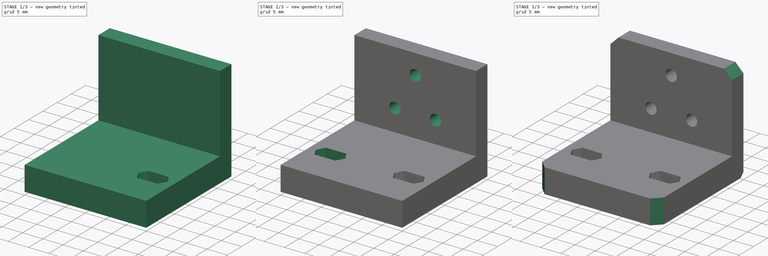
[diagram: build sequence overview — one tinted view per stage of 3, left to right]
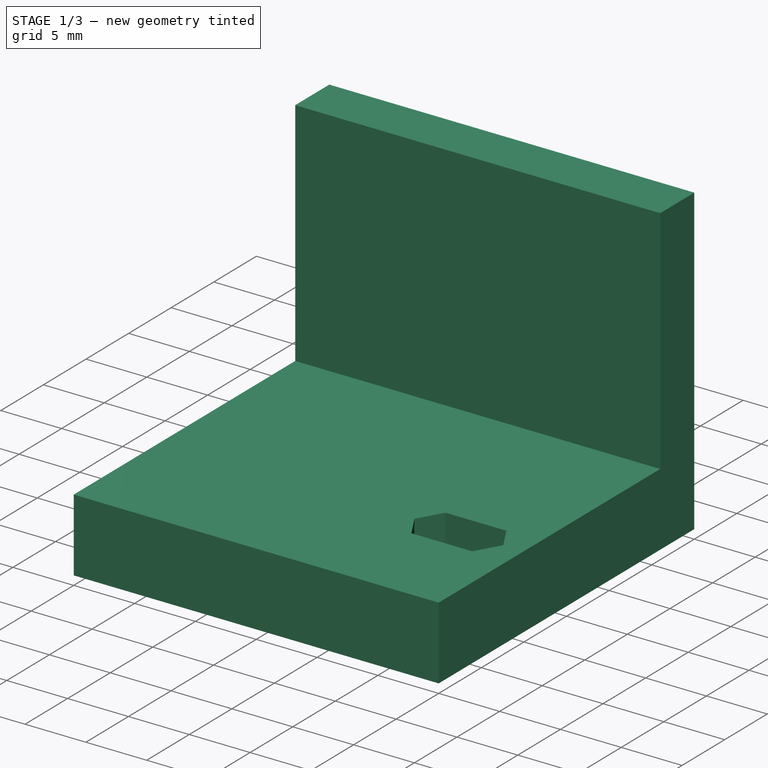
[diagram: stage 1 of 3 — iso view after this stage's code; geometry added in this stage tinted green]
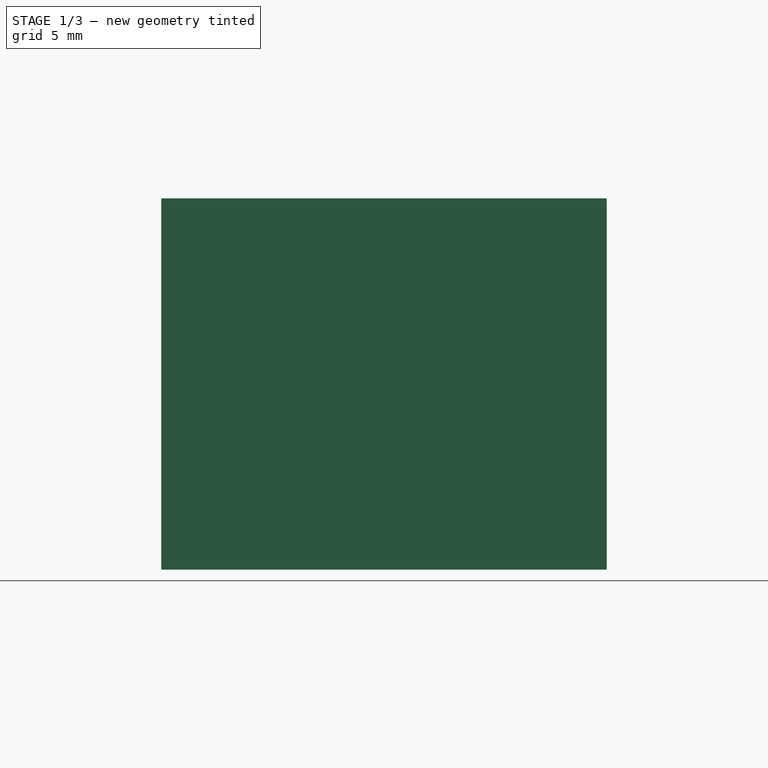
[diagram: stage 1 of 3 — front view after this stage's code; geometry added in this stage tinted green]
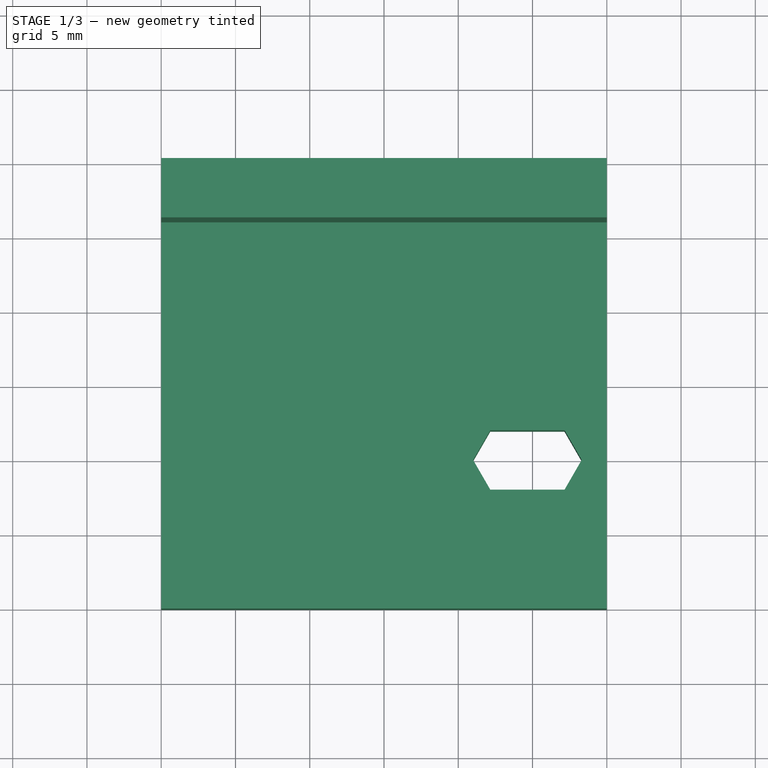
[diagram: stage 1 of 3 — top view after this stage's code; geometry added in this stage tinted green]
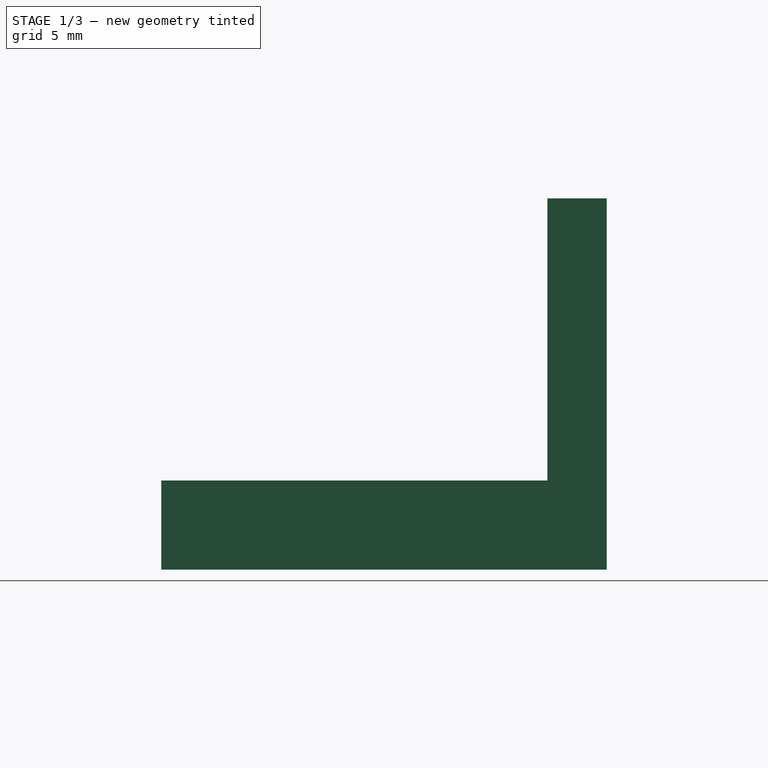
[diagram: stage 1 of 3 — right view after this stage's code; geometry added in this stage tinted green]
FCSTD DOCUMENT  (FreeCAD 0.19R)
Label: BedChainExtrusion
License: All rights reserved
LicenseURL: http://en.wikipedia.org/wiki/All_rights_reserved
objects: Sketcher::SketchObject×5, PartDesign::Pocket×3, PartDesign::Chamfer×3, PartDesign::Pad×1, PartDesign::Mirrored×1, PartDesign::Body×1
note: 21 computed .brp shape members not serialized (recipe doc carries the construction recipe); baked Part::Feature solids carry a one-line shape summary decoded from their .brp

FEATURE [Sketcher::SketchObject] Sketch
  FullyConstrained = true
  MapMode = 5
  Placement = pos=(0,0,0) rot=(1,0,0;1.5708rad)
  Support = -> [XZ_Plane]
  sketch-geometry (4):
    g0: LineSegment StartX=-15 StartY=25 StartZ=0 EndX=15 EndY=25 EndZ=0
    g1: LineSegment StartX=15 StartY=25 StartZ=0 EndX=15 EndY=0 EndZ=0
    g2: LineSegment StartX=15 StartY=0 StartZ=0 EndX=-15 EndY=0 EndZ=0
    g3: LineSegment StartX=-15 StartY=0 StartZ=0 EndX=-15 EndY=25 EndZ=0
  constraints (11):
    c: Coincident(g0,g1)
    c: Coincident(g1,g2)
    c: Coincident(g2,g3)
    c: Coincident(g3,g0)
    c: Horizontal(g2)
    c: Vertical(g1)
    c: Vertical(g3)
    c: PointOnObject(g1,g-1)
    c: Distance(g0) = 30
    c: Symmetric(g0,g0,g-2)
    c: Distance(g1) = 25
FEATURE [PartDesign::Pad] Pad
  Direction = (1,1,1)
  Length = 30
  Length2 = 100
  Placement = pos=(0,0,0) rot=(1,0,0;1.5708rad)
  Profile = -> Sketch
  Type = 0
FEATURE [Sketcher::SketchObject] Sketch001
  FullyConstrained = false
  MapMode = 5
  Placement = pos=(15,0,0) rot=(0.707107,0,0.707107;3.14159rad)
  Support = -> [Pad]
  sketch-geometry (4):
    g0: LineSegment StartX=6 StartY=35.0245 StartZ=0 EndX=26.7843 EndY=35.0245 EndZ=0
    g1: LineSegment StartX=26.7843 StartY=35.0245 StartZ=0 EndX=26.7843 EndY=4 EndZ=0
    g2: LineSegment StartX=26.7843 StartY=4 StartZ=0 EndX=6 EndY=4 EndZ=0
    g3: LineSegment StartX=6 StartY=4 StartZ=0 EndX=6 EndY=35.0245 EndZ=0
  constraints (10):
    c: Coincident(g0,g1)
    c: Coincident(g1,g2)
    c: Coincident(g2,g3)
    c: Coincident(g3,g0)
    c: Horizontal(g0)
    c: Horizontal(g2)
    c: Vertical(g1)
    c: Vertical(g3)
    c: DistanceY(g1) = 4
    c: DistanceX(g0) = 6
FEATURE [PartDesign::Pocket] Pocket
  BaseFeature = -> Pad
  Length = 5
  Length2 = 100
  Placement = pos=(0,0,0) rot=(1,0,0;1.5708rad)
  Profile = -> Sketch001
  Type = 1
FEATURE [Sketcher::SketchObject] Sketch002
  FullyConstrained = false
  MapMode = 5
  Placement = pos=(1.3e-15,-1.3e-15,6) rot=(0,0,1;3.14159rad)
  Support = -> [Pocket]
  sketch-geometry (13):
    g0: LineSegment StartX=-12.1547 StartY=18 StartZ=0 EndX=-7.15471 EndY=18 EndZ=0
    g1: LineSegment StartX=-7.15471 StartY=18 StartZ=0 EndX=-6 EndY=20 EndZ=0
    g2: LineSegment StartX=-6 StartY=20 StartZ=0 EndX=-7.15469 EndY=22 EndZ=0
    g3: LineSegment StartX=-7.15469 StartY=22 StartZ=0 EndX=-12.1547 EndY=22 EndZ=0
    g4: LineSegment StartX=-12.1547 StartY=22 StartZ=0 EndX=-13.3094 EndY=20 EndZ=0
    g5: LineSegment StartX=-13.3094 StartY=20 StartZ=0 EndX=-12.1547 EndY=18 EndZ=0
    g6: LineSegment StartX=11.2161 StartY=18 StartZ=0 EndX=12.3708 EndY=20 EndZ=0
    g7: LineSegment StartX=12.3708 StartY=20 StartZ=0 EndX=11.2161 EndY=22 EndZ=0
    g8: LineSegment StartX=11.2161 StartY=22 StartZ=0 EndX=8.90668 EndY=22 EndZ=0
    g9: LineSegment StartX=8.90668 StartY=22 StartZ=0 EndX=7.75198 EndY=20 EndZ=0
    g10: LineSegment StartX=7.75198 StartY=20 StartZ=0 EndX=8.90668 EndY=18 EndZ=0
    g11: LineSegment StartX=8.90668 StartY=18 StartZ=0 EndX=11.2161 EndY=18 EndZ=0
    g12: Circle CenterX=10.0614 CenterY=20 CenterZ=0 NormalX=0 NormalY=0 NormalZ=1 AngleXU=0 Radius=2.3094
  constraints (34):
    c: Coincident(g0,g1)
    c: Coincident(g1,g2)
    c: Coincident(g2,g3)
    c: Coincident(g3,g4)
    c: Coincident(g4,g5)
    c: Coincident(g5,g0)
    c: Coincident(g6,g7)
    c: Coincident(g7,g8)
    c: Coincident(g8,g9)
    c: Coincident(g9,g10)
    c: Coincident(g10,g11)
    c: Coincident(g11,g6)
    c: Equal(g6, g7-g11) x5
    c: PointOnObject(g6,g12)
    c: PointOnObject(g7,g12)
    c: PointOnObject(g8,g12)
    c: PointOnObject(g9,g12)
    c: PointOnObject(g10,g12)
    c: PointOnObject(g11,g12)
    c: DistanceY(g12) = 20
    c: Distance(g0,g2) = 4
    c: Equal(g2,g9)
    c: Horizontal(g3)
    c: Horizontal(g8)
    c: Distance(g0,g3) = 4
    c: Equal(g5,g4)
    c: Angle(g2,g1) = 2.0944
    c: Equal(g1,g2)
    c: DistanceX(g1) = -6
    c: Horizontal(g0)
    c: Angle(g5,g4) = 2.0944
    c: Angle(g4) = -2.0944
    c: DistanceY(g1) = 20
    c: Distance(g0) = 5
FEATURE [PartDesign::Pocket] Pocket001
  BaseFeature = -> Pocket
  Length = 5
  Length2 = 100
  Placement = pos=(0,0,0) rot=(1,0,0;1.5708rad)
  Profile = -> Sketch002
  Type = 1
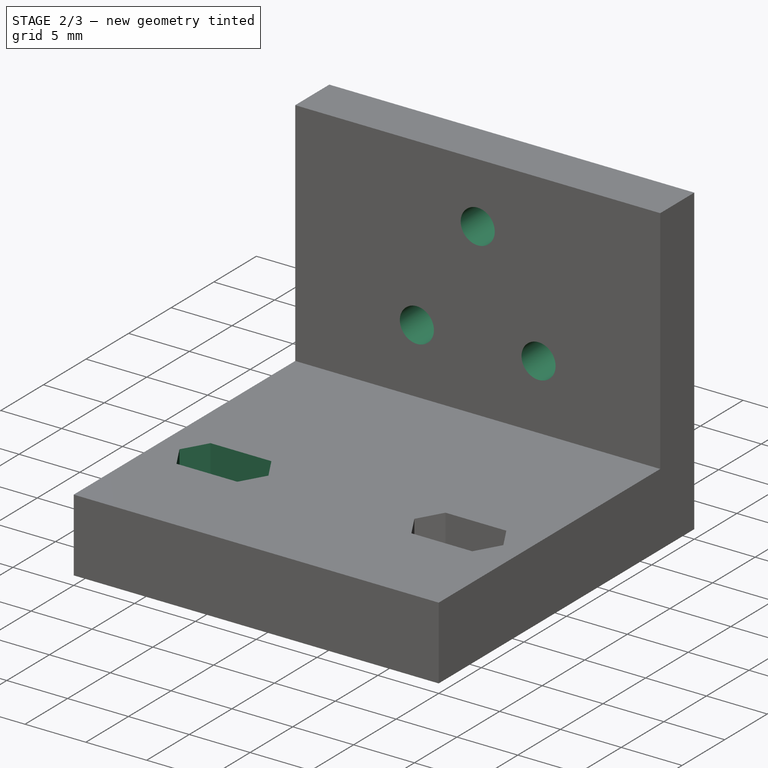
[diagram: stage 2 of 3 — iso view after this stage's code; geometry added in this stage tinted green]
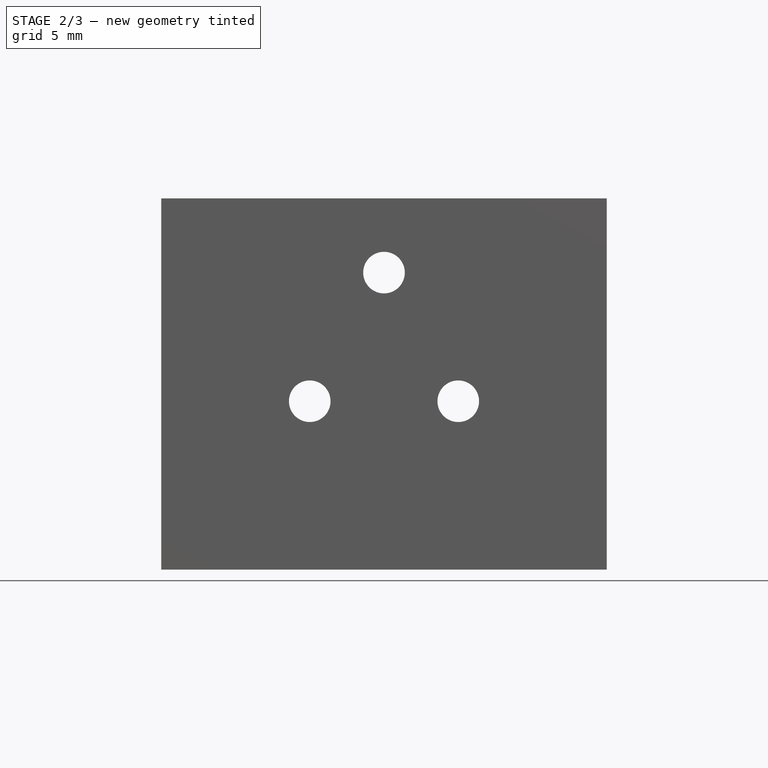
[diagram: stage 2 of 3 — front view after this stage's code; geometry added in this stage tinted green]
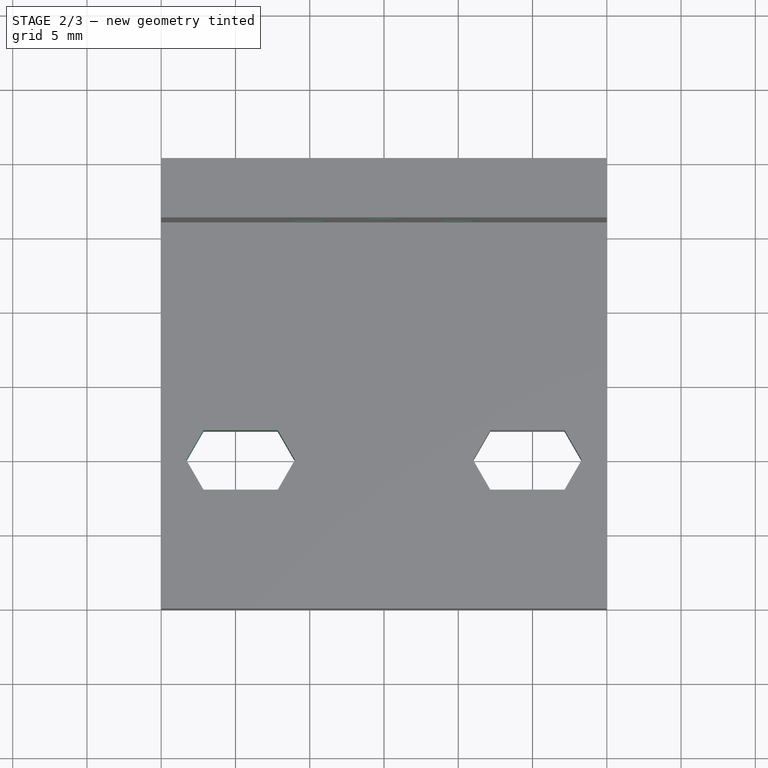
[diagram: stage 2 of 3 — top view after this stage's code; geometry added in this stage tinted green]
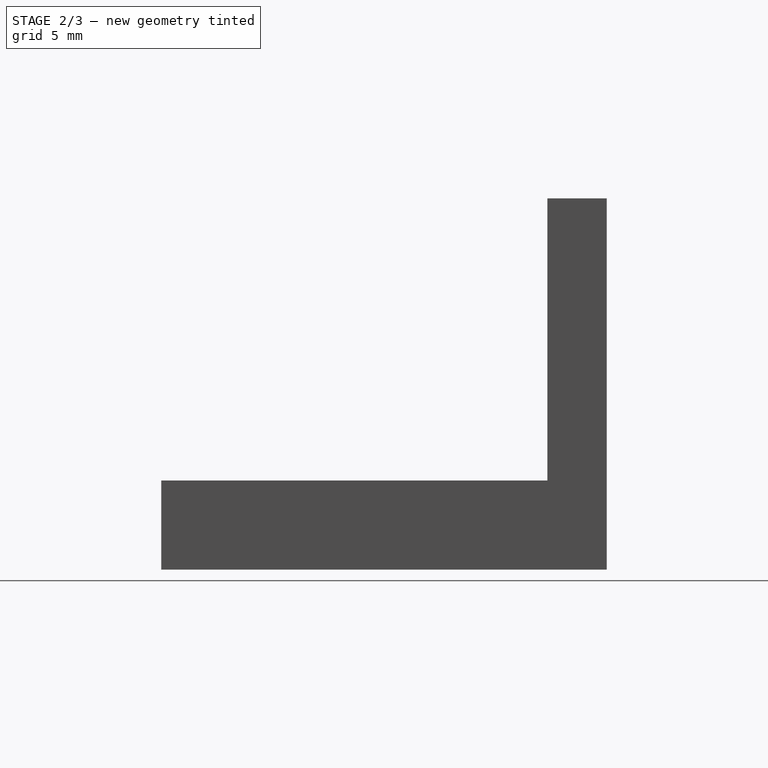
[diagram: stage 2 of 3 — right view after this stage's code; geometry added in this stage tinted green]
FEATURE [Sketcher::SketchObject] Sketch003
  FullyConstrained = true
  MapMode = 5
  Placement = pos=(0,-4,-9e-16) rot=(1,0,0;1.5708rad)
  Support = -> [Pocket001]
  sketch-geometry (6):
    g0: Circle CenterX=5.6977e-12 CenterY=20 CenterZ=0 NormalX=0 NormalY=0 NormalZ=1 AngleXU=0 Radius=1.4
    g1: Circle CenterX=5 CenterY=11.3397 CenterZ=0 NormalX=0 NormalY=0 NormalZ=1 AngleXU=0 Radius=1.4
    g2: Circle CenterX=-5 CenterY=11.3397 CenterZ=0 NormalX=0 NormalY=0 NormalZ=1 AngleXU=0 Radius=1.4
    g3: LineSegment StartX=5.6977e-12 StartY=20 StartZ=0 EndX=-5 EndY=11.3397 EndZ=0
    g4: LineSegment StartX=-5 StartY=11.3397 StartZ=0 EndX=5 EndY=11.3397 EndZ=0
    g5: LineSegment StartX=5 StartY=11.3397 StartZ=0 EndX=5.6977e-12 EndY=20 EndZ=0
  constraints (14):
    c: Coincident(g3,g0)
    c: Coincident(g3,g2)
    c: Coincident(g3,g4)
    c: Coincident(g4,g1)
    c: Coincident(g4,g5)
    c: Coincident(g5,g3)
    c: Distance(g4) = 10
    c: Equal(g3,g5)
    c: Symmetric(g1,g2,g-2)
    c: Equal(g5,g4)
    c: Diameter(g0) = 2.8
    c: Equal(g0,g1)
    c: Equal(g0,g2)
    c: DistanceY(g0) = 20
FEATURE [PartDesign::Mirrored] Mirrored
  BaseFeature = -> Pocket001
  MirrorPlane = -> Sketch002 [V_Axis]
  Originals = -> [Pocket001]
  Placement = pos=(0,0,0) rot=(1,0,0;1.5708rad)
FEATURE [PartDesign::Pocket] Pocket002
  BaseFeature = -> Mirrored
  Length = 5
  Length2 = 100
  Placement = pos=(0,0,0) rot=(1,0,0;1.5708rad)
  Profile = -> Sketch003
  Type = 0
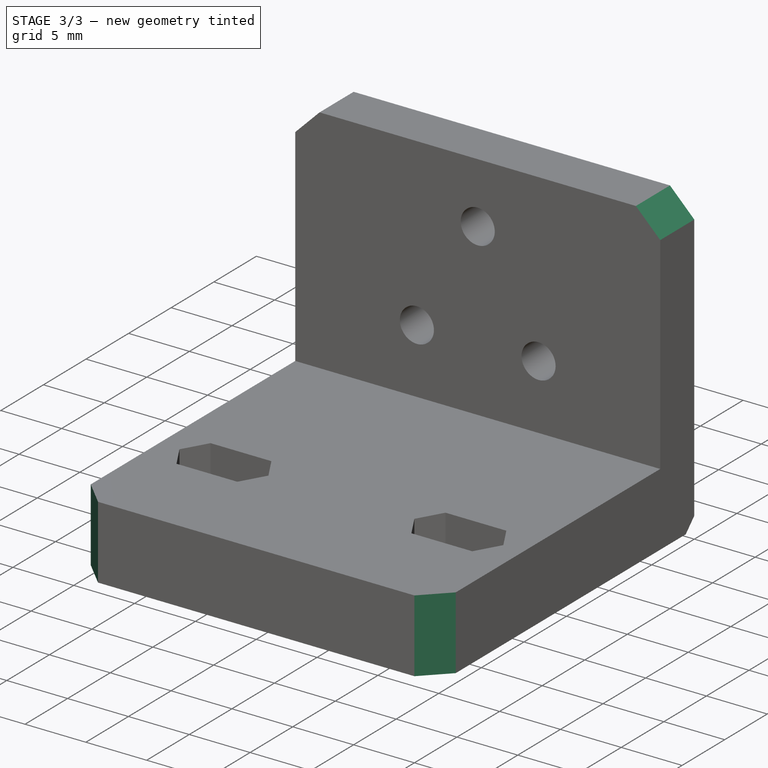
[diagram: stage 3 of 3 — iso view after this stage's code; geometry added in this stage tinted green]
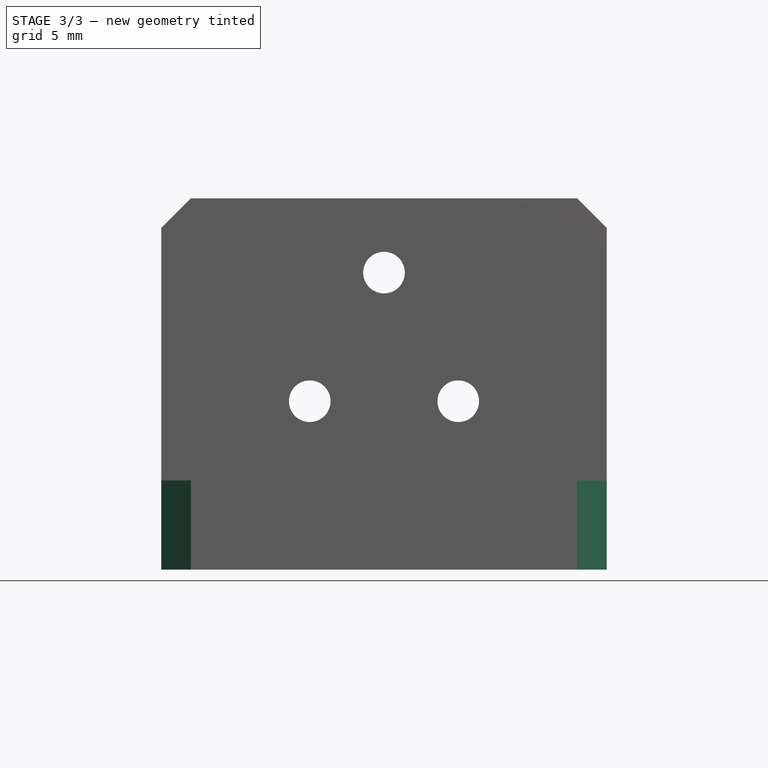
[diagram: stage 3 of 3 — front view after this stage's code; geometry added in this stage tinted green]
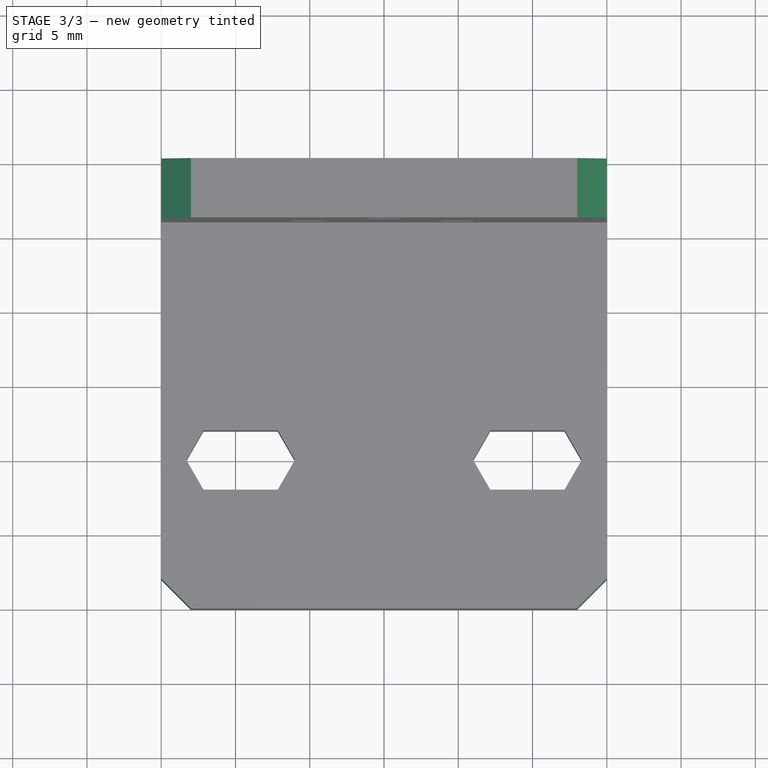
[diagram: stage 3 of 3 — top view after this stage's code; geometry added in this stage tinted green]
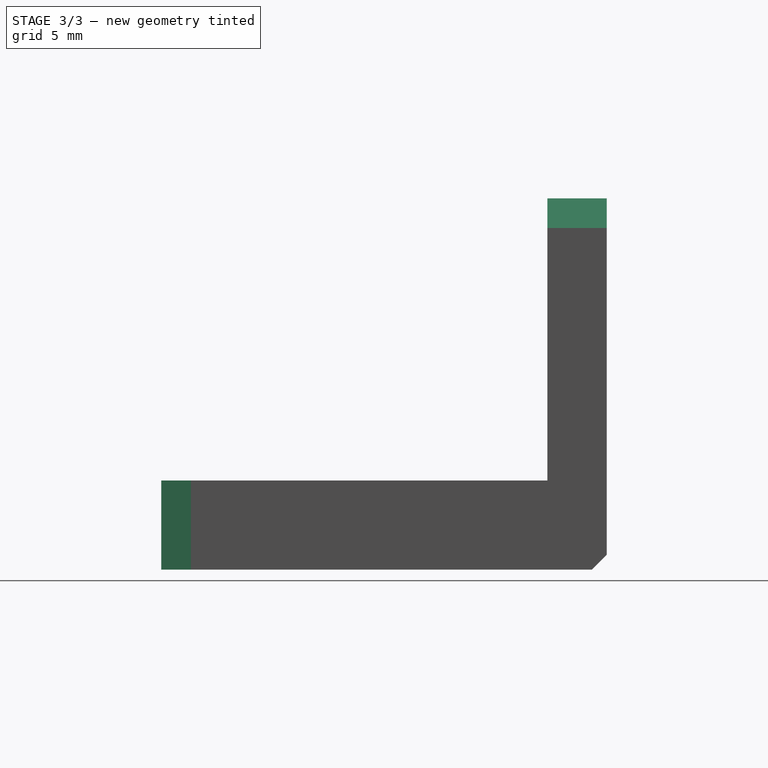
[diagram: stage 3 of 3 — right view after this stage's code; geometry added in this stage tinted green]
FEATURE [Sketcher::SketchObject] Sketch004
  FullyConstrained = false
  MapMode = 5
  Placement = pos=(1.3e-15,-1.3e-15,6) rot=(0,0,1;3.14159rad)
  Support = -> [Pocket002]
  sketch-geometry (4):
    g0: LineSegment StartX=-9.71998 StartY=24.0629 StartZ=0 EndX=10.3051 EndY=24.0629 EndZ=0
    g1: LineSegment StartX=10.3051 StartY=24.0629 StartZ=0 EndX=10.3051 EndY=16.7096 EndZ=0
    g2: LineSegment StartX=10.3051 StartY=16.7096 StartZ=0 EndX=-9.71998 EndY=16.7096 EndZ=0
    g3: LineSegment StartX=-9.71998 StartY=16.7096 StartZ=0 EndX=-9.71998 EndY=24.0629 EndZ=0
  constraints (8):
    c: Coincident(g0,g1)
    c: Coincident(g1,g2)
    c: Coincident(g2,g3)
    c: Coincident(g3,g0)
    c: Horizontal(g0)
    c: Horizontal(g2)
    c: Vertical(g1)
    c: Vertical(g3)
FEATURE [PartDesign::Chamfer] Chamfer
  Angle = 45
  Base = -> Pocket002 [Edge4,Edge2]
  BaseFeature = -> Pocket002
  ChamferType = 0
  FlipDirection = false
  Placement = pos=(0,0,0) rot=(1,0,0;1.5708rad)
  Size = 2
  Size2 = 1
  SupportTransform = false
FEATURE [PartDesign::Chamfer] Chamfer001
  Angle = 45
  Base = -> Chamfer [Edge27,Edge24]
  BaseFeature = -> Chamfer
  ChamferType = 0
  FlipDirection = false
  Placement = pos=(0,0,0) rot=(1,0,0;1.5708rad)
  Size = 2
  Size2 = 1
  SupportTransform = false
FEATURE [PartDesign::Chamfer] Chamfer002
  Angle = 45
  Base = -> Chamfer001 [Edge9]
  BaseFeature = -> Chamfer001
  ChamferType = 0
  FlipDirection = false
  Placement = pos=(0,0,0) rot=(1,0,0;1.5708rad)
  Size = 1
  Size2 = 1
  SupportTransform = false
FEATURE [PartDesign::Body] Body
  Group = -> [Sketch,Pad,Sketch001,Pocket,Sketch002,Pocket001,Sketch003,Mirrored,Pocket002,Sketch004,Chamfer,Chamfer001,Chamfer002]
  Origin = -> Origin
  Tip = -> Chamfer002
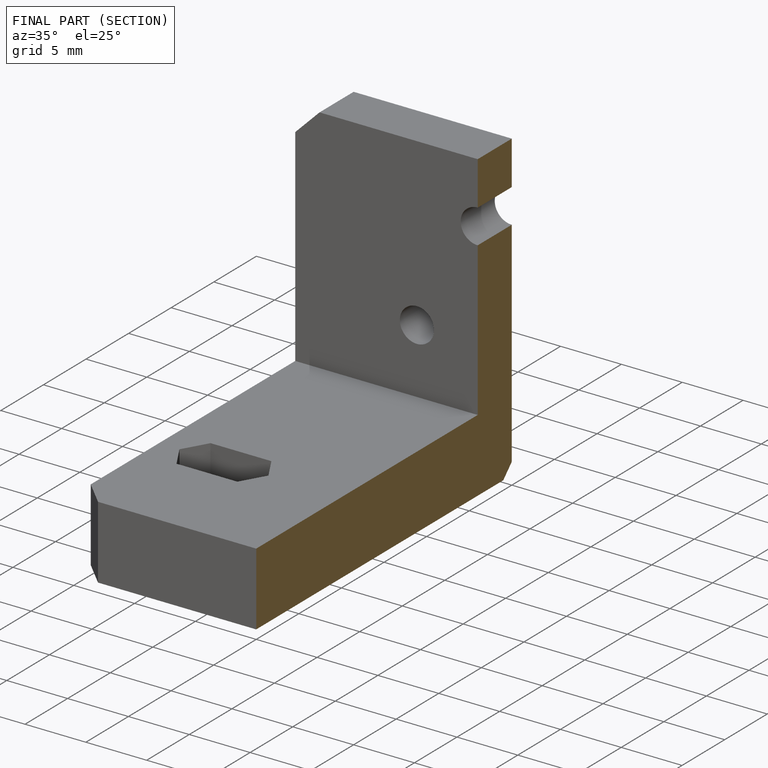
[diagram: finished part — half-section view (interior)]
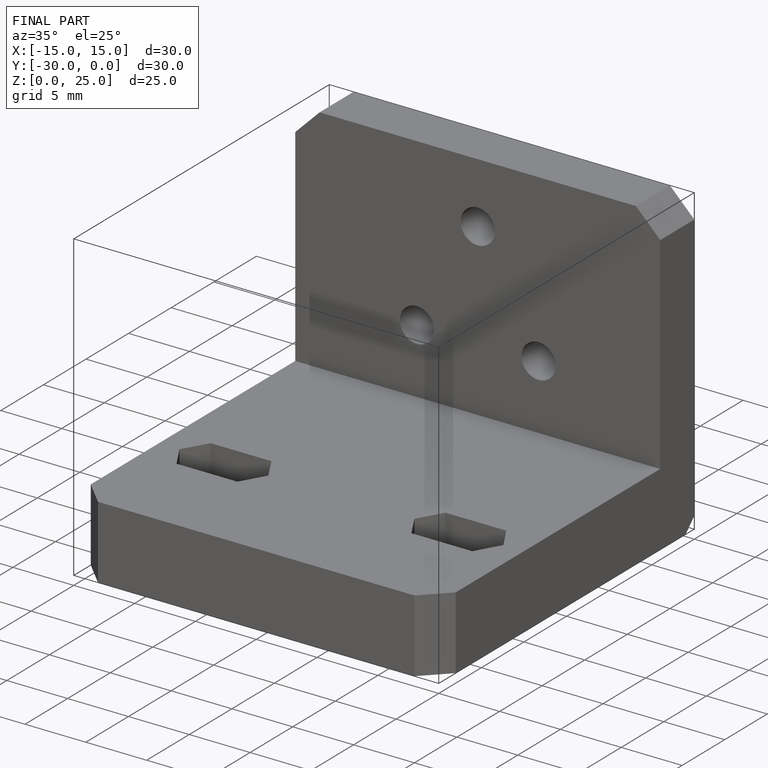
[diagram: finished part — iso view with bounding-box wireframe]
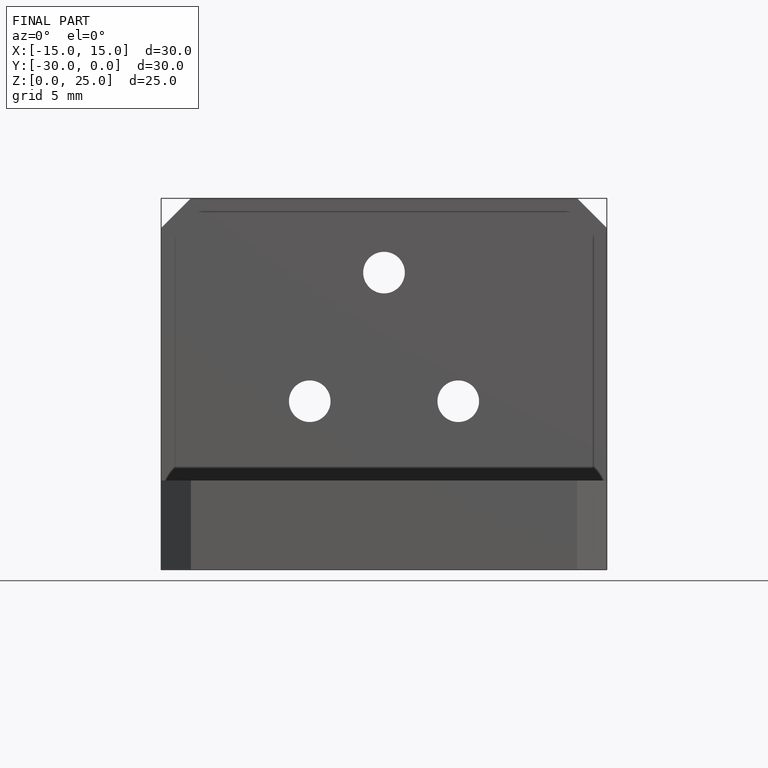
[diagram: finished part — front view with bounding-box wireframe]
